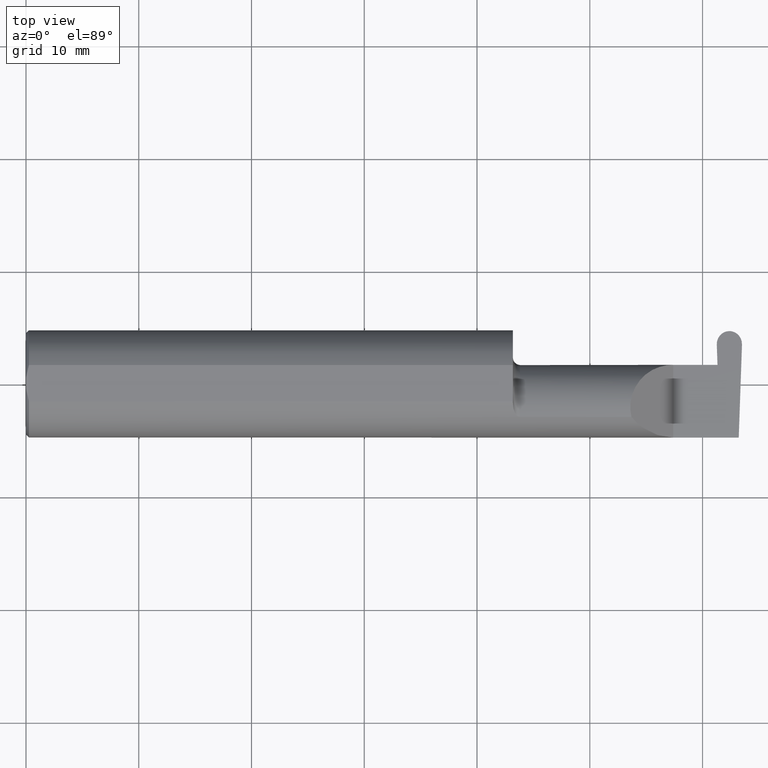
[diagram: clean part render]
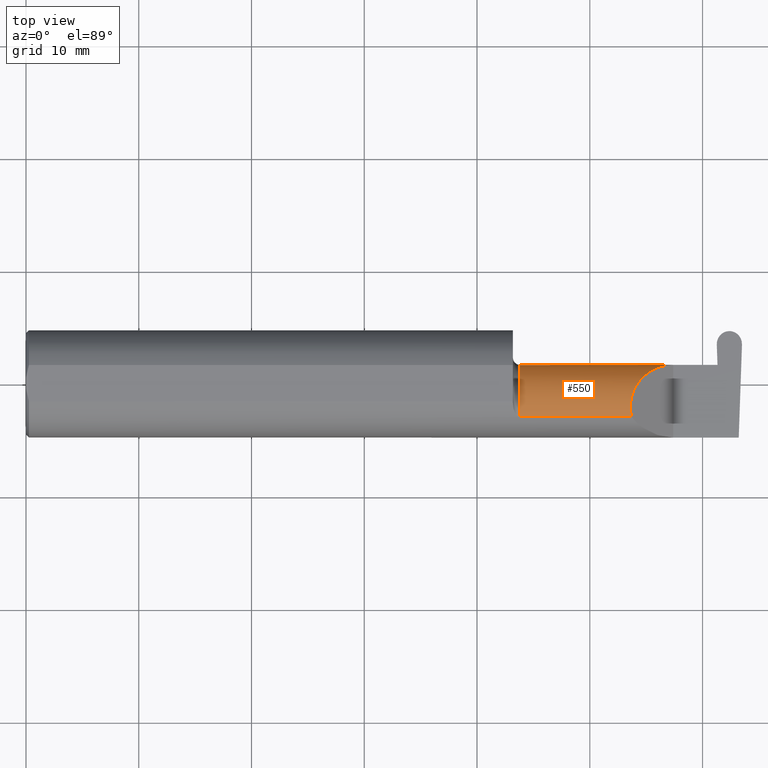
[diagram: same view with one face highlighted and labeled with its STEP entity id]
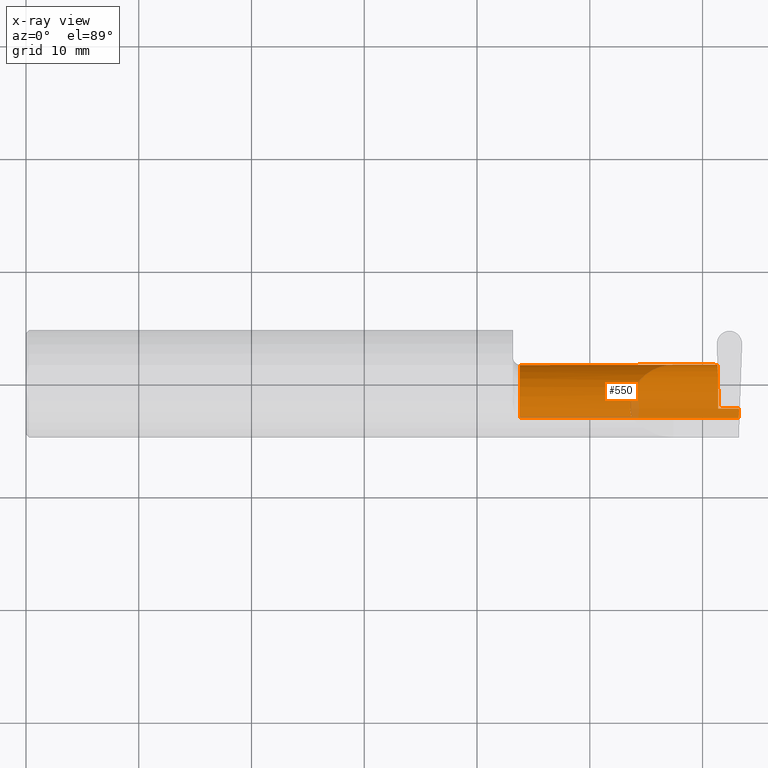
[diagram: x-ray of the same camera — body ghosted, the highlighted face saturated]
A machine part, top view. The second image highlights one B-rep face of the part: STEP entity #550.
The next image is the same camera in x-ray: the body ghosted, the highlighted face saturated — about 3% of this face is hidden behind the body in this view.
In plain terms, the highlighted cylindrical surface (partial cylindrical patch) has radius 3.81 mm, axis along (-1, -0, -0).
Its self-contained STEP definition (entity closure, byte-faithful):
#3 = CARTESIAN_POINT ( 'NONE',  ( 2.488471823259917226, -0.1172600179964006784, -0.1461167706989303094 ) ) ;
#24 = CARTESIAN_POINT ( 'NONE',  ( 1.724999999999999867, -0.1172600179964006784, -0.1461167706989303650 ) ) ;
#25 = ORIENTED_EDGE ( 'NONE', *, *, #426, .T. ) ;
#28 = EDGE_CURVE ( 'NONE', #63, #681, #199, .T. ) ;
#35 = CARTESIAN_POINT ( 'NONE',  ( 1.699999999999999956, -0.08334999999999999354, 0.000000000000000000 ) ) ;
#39 = CARTESIAN_POINT ( 'NONE',  ( 2.417117327835069940, -0.08334999999999997966, -0.1500000000000000222 ) ) ;
#44 = CARTESIAN_POINT ( 'NONE',  ( 2.405147528298442694, 0.06655862405286418204, -0.005234924505380752179 ) ) ;
#46 = EDGE_LOOP ( 'NONE', ( #429, #705, #25, #442, #676, #464, #425, #432, #209, #58 ) ) ;
#52 = CARTESIAN_POINT ( 'NONE',  ( 2.489588163846105484, -0.08335000000000010456, -0.1500000000000000500 ) ) ;
#58 = ORIENTED_EDGE ( 'NONE', *, *, #503, .F. ) ;
#61 = CARTESIAN_POINT ( 'NONE',  ( 2.417117327835069940, -0.08334999999999997966, -0.1500000000000000222 ) ) ;
#62 = EDGE_CURVE ( 'NONE', #123, #575, #247, .T. ) ;
#63 = VERTEX_POINT ( 'NONE', #255 ) ;
#103 = CARTESIAN_POINT ( 'NONE',  ( 2.405177986947488300, 0.06658908270190942724, -0.003489949670253836810 ) ) ;
#112 = VECTOR ( 'NONE', #577, 39.37007874015748143 ) ;
#114 = CARTESIAN_POINT ( 'NONE',  ( 2.068402844999999601, -0.1172600179964006784, -0.1461167706989303094 ) ) ;
#118 = CARTESIAN_POINT ( 'NONE',  ( 1.724999999999999867, -0.1172600179964006784, 0.1461167706989303650 ) ) ;
#120 = B_SPLINE_CURVE_WITH_KNOTS ( 'NONE', 3,
 ( #44, #103, #593, #265 ),
 .UNSPECIFIED., .F., .F.,
 ( 4, 4 ),
 ( 0.000000000000000000, 1.000000000000000000 ),
 .UNSPECIFIED. ) ;
#122 = LINE ( 'NONE', #114, #204 ) ;
#123 = VERTEX_POINT ( 'NONE', #52 ) ;
#124 = AXIS2_PLACEMENT_3D ( 'NONE', #350, #404, #129 ) ;
#129 = DIRECTION ( 'NONE',  ( 0.000000000000000000, -1.000000000000000000, 0.000000000000000000 ) ) ;
#131 = CARTESIAN_POINT ( 'NONE',  ( 2.155331797197863608, 0.06665000000000001479, 0.1046682028021362204 ) ) ;
#132 = CARTESIAN_POINT ( 'NONE',  ( 2.733184360054361939, -0.08335000000000010456, -0.1500000000000000500 ) ) ;
#144 = CARTESIAN_POINT ( 'NONE',  ( 2.488471823259917226, -0.1172600179964006784, -0.1461167706989303094 ) ) ;
#155 = FACE_OUTER_BOUND ( 'NONE', #46, .T. ) ;
#173 = VERTEX_POINT ( 'NONE', #497 ) ;
#189 = EDGE_CURVE ( 'NONE', #488, #356, #431, .T. ) ;
#199 = LINE ( 'NONE', #415, #112 ) ;
#204 = VECTOR ( 'NONE', #512, 39.37007874015748143 ) ;
#209 = ORIENTED_EDGE ( 'NONE', *, *, #62, .F. ) ;
#213 = CARTESIAN_POINT ( 'NONE',  ( 2.489588163846105484, -0.08335000000000010456, -0.1500000000000000500 ) ) ;
#217 = EDGE_CURVE ( 'NONE', #621, #318, #122, .T. ) ;
#224 = CARTESIAN_POINT ( 'NONE',  ( 2.417090374579074830, 0.002105059811797824979, -0.1500000000000000500 ) ) ;
#247 = LINE ( 'NONE', #132, #332 ) ;
#249 = EDGE_CURVE ( 'NONE', #575, #63, #366, .T. ) ;
#254 = DIRECTION ( 'NONE',  ( 0.000000000000000000, -1.000000000000000000, 0.000000000000000000 ) ) ;
#255 = CARTESIAN_POINT ( 'NONE',  ( 2.414454177608814867, 0.06655862405286415429, -0.005234924505383332580 ) ) ;
#265 = CARTESIAN_POINT ( 'NONE',  ( 2.405238904245578624, 0.06664999999999991764, 0.000000000000000000 ) ) ;
#288 = CARTESIAN_POINT ( 'NONE',  ( 2.405147528298442694, 0.06655862405286418204, -0.005234924505380752179 ) ) ;
#299 = LINE ( 'NONE', #578, #560 ) ;
#313 = VERTEX_POINT ( 'NONE', #118 ) ;
#318 = VERTEX_POINT ( 'NONE', #24 ) ;
#328 = DIRECTION ( 'NONE',  ( 1.000000000000000000, 2.398695346254066018E-17, 0.000000000000000000 ) ) ;
#332 = VECTOR ( 'NONE', #585, 39.37007874015748143 ) ;
#338 = CARTESIAN_POINT ( 'NONE',  ( 2.414454177608814867, 0.06655862405286415429, -0.005234924505383332580 ) ) ;
#345 = CIRCLE ( 'NONE', #124, 0.1499999999999999944 ) ;
#350 = CARTESIAN_POINT ( 'NONE',  ( 1.724999999999999867, -0.08334999999999999354, 0.000000000000000000 ) ) ;
#356 = VERTEX_POINT ( 'NONE', #409 ) ;
#366 =( BOUNDED_CURVE ( )  B_SPLINE_CURVE ( 3, ( #61, #224, #397, #338 ),
 .UNSPECIFIED., .F., .T. ) 
 B_SPLINE_CURVE_WITH_KNOTS ( ( 4, 4 ),
 ( 3.159045946109734881, 4.694935687864690621 ),
 .UNSPECIFIED. ) 
 CURVE ( )  GEOMETRIC_REPRESENTATION_ITEM ( )  RATIONAL_B_SPLINE_CURVE ( ( 1.000000000000000000, 0.8128932002257799327, 0.8128932002257799327, 1.000000000000000000 ) ) 
 REPRESENTATION_ITEM ( '' )  );
#391 = EDGE_CURVE ( 'NONE', #173, #488, #703, .T. ) ;
#397 = CARTESIAN_POINT ( 'NONE',  ( 2.415998328610626800, 0.06357628547474561409, -0.09063792740366212464 ) ) ;
#404 = DIRECTION ( 'NONE',  ( -1.000000000000000000, -2.398695346254066018E-17, -0.000000000000000000 ) ) ;
#407 = CARTESIAN_POINT ( 'NONE',  ( 2.260000000000000231, 0.06665000000000001479, 9.797174393178831081E-17 ) ) ;
#409 = CARTESIAN_POINT ( 'NONE',  ( 2.405238904245578624, 0.06664999999999991764, 0.000000000000000000 ) ) ;
#411 = VECTOR ( 'NONE', #328, 39.37007874015748143 ) ;
#415 = CARTESIAN_POINT ( 'NONE',  ( 1.699999999999999956, 0.06655862405286422367, -0.005234924505379321032 ) ) ;
#425 = ORIENTED_EDGE ( 'NONE', *, *, #28, .F. ) ;
#426 = EDGE_CURVE ( 'NONE', #313, #173, #299, .T. ) ;
#429 = ORIENTED_EDGE ( 'NONE', *, *, #217, .T. ) ;
#431 = LINE ( 'NONE', #650, #411 ) ;
#432 = ORIENTED_EDGE ( 'NONE', *, *, #249, .F. ) ;
#442 = ORIENTED_EDGE ( 'NONE', *, *, #391, .T. ) ;
#464 = ORIENTED_EDGE ( 'NONE', *, *, #489, .F. ) ;
#465 = EDGE_CURVE ( 'NONE', #313, #318, #345, .T. ) ;
#467 = CARTESIAN_POINT ( 'NONE',  ( 2.113883229301068312, -0.1172600179964008310, 0.1461167706989301707 ) ) ;
#478 = DIRECTION ( 'NONE',  ( -1.000000000000000000, -2.398695346254066018E-17, -0.000000000000000000 ) ) ;
#484 = CYLINDRICAL_SURFACE ( 'NONE', #496, 0.1499999999999999944 ) ;
#488 = VERTEX_POINT ( 'NONE', #407 ) ;
#489 = EDGE_CURVE ( 'NONE', #681, #356, #120, .T. ) ;
#496 = AXIS2_PLACEMENT_3D ( 'NONE', #35, #478, #254 ) ;
#497 = CARTESIAN_POINT ( 'NONE',  ( 2.113883229301068312, -0.1172600179964008310, 0.1461167706989301707 ) ) ;
#503 = EDGE_CURVE ( 'NONE', #621, #123, #613, .T. ) ;
#512 = DIRECTION ( 'NONE',  ( -1.000000000000000000, -2.398695346254066018E-17, -0.000000000000000000 ) ) ;
#546 = CARTESIAN_POINT ( 'NONE',  ( 2.488815404197634251, -0.1061291577212409437, -0.1486999626928446339 ) ) ;
#550 = ADVANCED_FACE ( 'NONE', ( #155 ), #484, .T. ) ;
#560 = VECTOR ( 'NONE', #620, 39.37007874015748143 ) ;
#575 = VERTEX_POINT ( 'NONE', #39 ) ;
#577 = DIRECTION ( 'NONE',  ( -1.000000000000000000, -2.398695346254066018E-17, -0.000000000000000000 ) ) ;
#578 = CARTESIAN_POINT ( 'NONE',  ( 2.068402844999999601, -0.1172600179964006784, 0.1461167706989303094 ) ) ;
#585 = DIRECTION ( 'NONE',  ( -1.000000000000000000, -0.000000000000000000, -0.000000000000000000 ) ) ;
#593 = CARTESIAN_POINT ( 'NONE',  ( 2.405208445596533462, 0.06661954135095467244, -0.001744974835126918405 ) ) ;
#613 =( BOUNDED_CURVE ( )  B_SPLINE_CURVE ( 3, ( #144, #546, #635, #213 ),
 .UNSPECIFIED., .F., .F. ) 
 B_SPLINE_CURVE_WITH_KNOTS ( ( 4, 4 ),
 ( 0.8789888184544047967, 1.107026853503848551 ),
 .UNSPECIFIED. ) 
 CURVE ( )  GEOMETRIC_REPRESENTATION_ITEM ( )  RATIONAL_B_SPLINE_CURVE ( ( 1.000000000000000000, 0.9956712472009929815, 0.9956712472009929815, 1.000000000000000000 ) ) 
 REPRESENTATION_ITEM ( '' )  );
#620 = DIRECTION ( 'NONE',  ( 1.000000000000000000, 2.398695346254066018E-17, 0.000000000000000000 ) ) ;
#621 = VERTEX_POINT ( 'NONE', #3 ) ;
#635 = CARTESIAN_POINT ( 'NONE',  ( 2.489189135516857831, -0.09477667630339424443, -0.1499999999999999944 ) ) ;
#650 = CARTESIAN_POINT ( 'NONE',  ( 1.699999999999999956, 0.06664999999999998703, 9.797174393178831081E-17 ) ) ;
#676 = ORIENTED_EDGE ( 'NONE', *, *, #189, .T. ) ;
#680 = CARTESIAN_POINT ( 'NONE',  ( 2.090221225029925911, -0.01530148607434181872, 0.1697787749700727933 ) ) ;
#681 = VERTEX_POINT ( 'NONE', #288 ) ;
#686 = CARTESIAN_POINT ( 'NONE',  ( 2.260000000000000231, 0.06665000000000001479, 9.797174393178831081E-17 ) ) ;
#703 =( BOUNDED_CURVE ( )  B_SPLINE_CURVE ( 3, ( #467, #680, #131, #686 ),
 .UNSPECIFIED., .F., .T. ) 
 B_SPLINE_CURVE_WITH_KNOTS ( ( 4, 4 ),
 ( 6.055147272130140479, 7.853981633974482790 ),
 .UNSPECIFIED. ) 
 CURVE ( )  GEOMETRIC_REPRESENTATION_ITEM ( )  RATIONAL_B_SPLINE_CURVE ( ( 1.000000000000000000, 0.7480442670255262883, 0.7480442670255262883, 1.000000000000000000 ) ) 
 REPRESENTATION_ITEM ( '' )  );
#705 = ORIENTED_EDGE ( 'NONE', *, *, #465, .F. ) ;